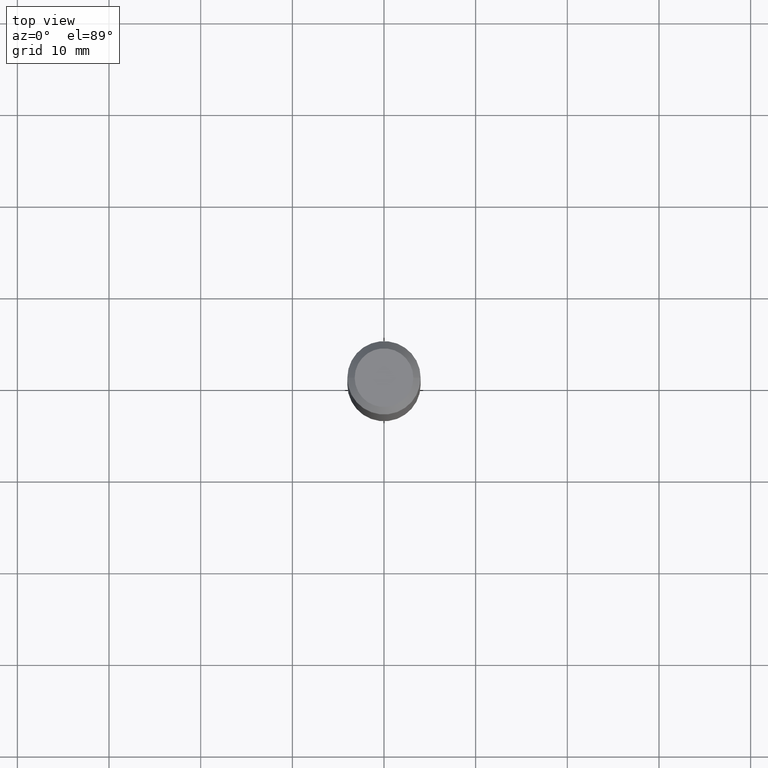
[diagram: clean part render]
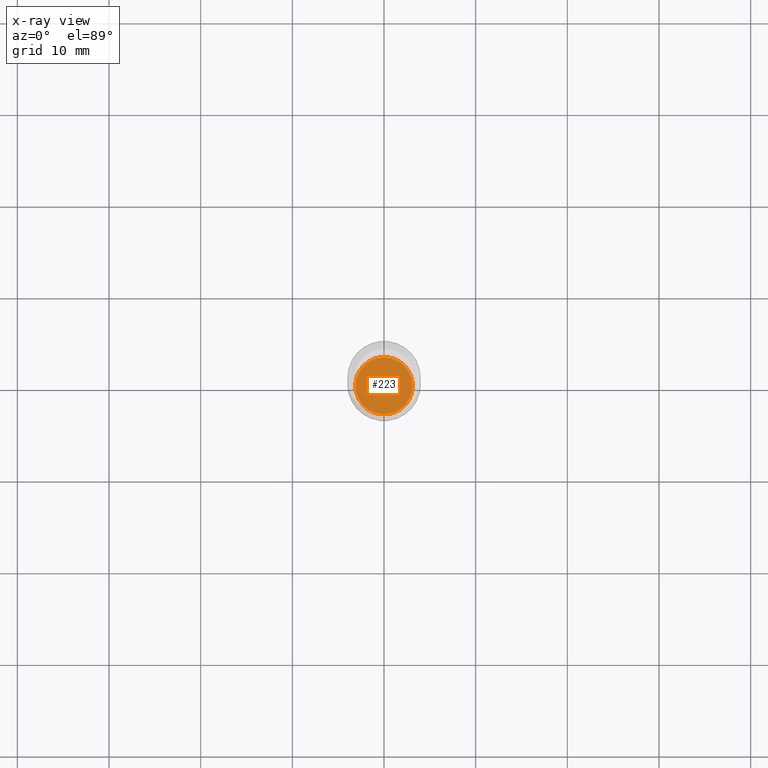
[diagram: x-ray — body ghosted, one internal face saturated and labeled with its STEP entity id]
A machine part, top view, then the same camera in x-ray: the body is ghosted and one INTERNAL B-rep face — a face not visible from any outside direction — is saturated and labeled: STEP entity #223.
In plain terms, the highlighted planar face has unit normal (-0, 0, 1).
Its self-contained STEP definition (entity closure, byte-faithful):
#6 = ORIENTED_EDGE ( 'NONE', *, *, #278, .F. ) ;
#7 = PLANE ( 'NONE',  #177 ) ;
#27 = EDGE_CURVE ( 'NONE', #77, #410, #321, .T. ) ;
#54 = DIRECTION ( 'NONE',  ( -2.445468806185136597E-29, 3.491481338843145583E-15, 1.000000000000000000 ) ) ;
#61 = AXIS2_PLACEMENT_3D ( 'NONE', #342, #203, #73 ) ;
#73 = DIRECTION ( 'NONE',  ( 1.000000000000000000, -6.982962677686265922E-15, 0.000000000000000000 ) ) ;
#77 = VERTEX_POINT ( 'NONE', #250 ) ;
#107 = EDGE_LOOP ( 'NONE', ( #6, #120 ) ) ;
#120 = ORIENTED_EDGE ( 'NONE', *, *, #27, .F. ) ;
#152 = CARTESIAN_POINT ( 'NONE',  ( 4.938868800971501707E-29, -7.051395711927616472E-15, -2.019600000000000062 ) ) ;
#177 = AXIS2_PLACEMENT_3D ( 'NONE', #152, #301, #205 ) ;
#203 = DIRECTION ( 'NONE',  ( -2.445468806185136597E-29, 3.491481338843145583E-15, 1.000000000000000000 ) ) ;
#205 = DIRECTION ( 'NONE',  ( 1.000000000000000000, -6.982962677686265922E-15, 4.876176775795935793E-29 ) ) ;
#223 = ADVANCED_FACE ( 'NONE', ( #339 ), #7, .F. ) ;
#250 = CARTESIAN_POINT ( 'NONE',  ( -0.1234999999999999987, -6.171226206089782734E-15, -2.019600000000000062 ) ) ;
#278 = EDGE_CURVE ( 'NONE', #410, #77, #427, .T. ) ;
#301 = DIRECTION ( 'NONE',  ( -2.438088387897960049E-29, 3.491481338843145188E-15, 1.000000000000000000 ) ) ;
#321 = CIRCLE ( 'NONE', #336, 0.1234999999999999987 ) ;
#336 = AXIS2_PLACEMENT_3D ( 'NONE', #435, #54, #347 ) ;
#339 = FACE_OUTER_BOUND ( 'NONE', #107, .T. ) ;
#342 = CARTESIAN_POINT ( 'NONE',  ( 4.938868800971501707E-29, -7.051395711927616472E-15, -2.019600000000000062 ) ) ;
#347 = DIRECTION ( 'NONE',  ( 1.000000000000000000, -6.982962677686265922E-15, 0.000000000000000000 ) ) ;
#410 = VERTEX_POINT ( 'NONE', #415 ) ;
#415 = CARTESIAN_POINT ( 'NONE',  ( 0.1234999999999999987, -7.913791602621870789E-15, -2.019600000000000062 ) ) ;
#427 = CIRCLE ( 'NONE', #61, 0.1234999999999999987 ) ;
#435 = CARTESIAN_POINT ( 'NONE',  ( 4.938868800971501707E-29, -7.051395711927616472E-15, -2.019600000000000062 ) ) ;